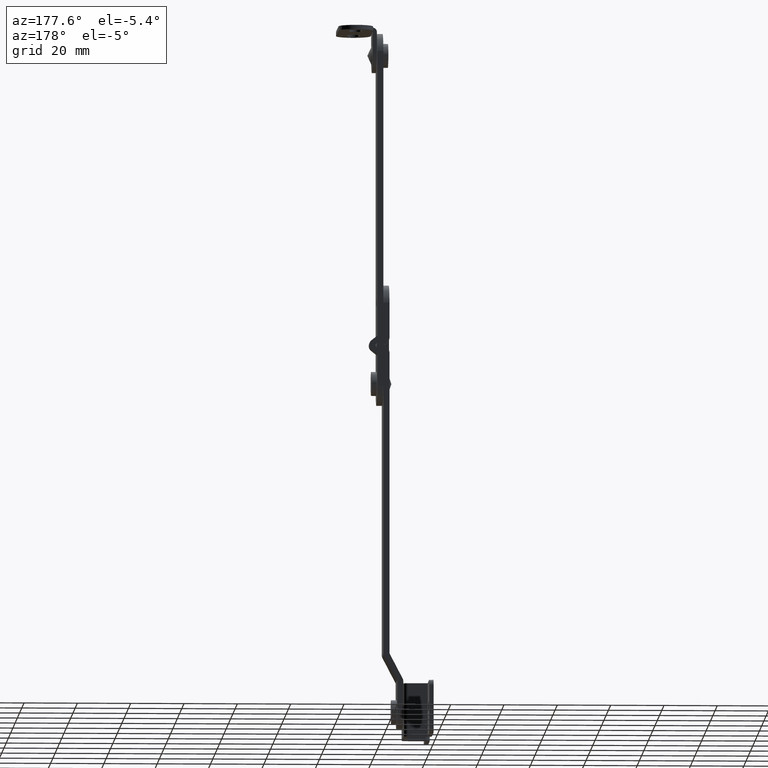
[diagram: clean part render]
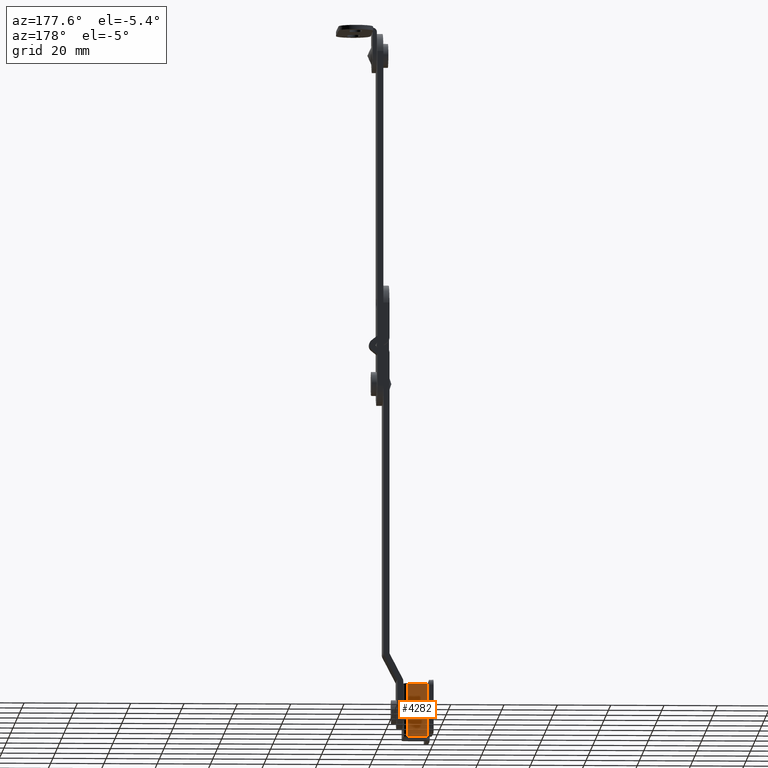
[diagram: same view with one face highlighted and labeled with its STEP entity id]
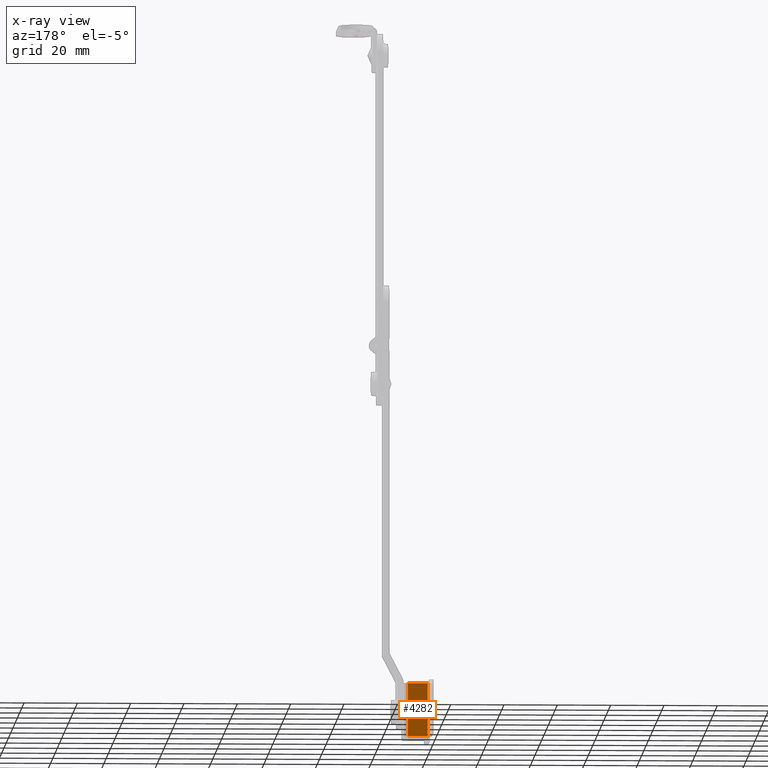
[diagram: x-ray of the same camera — body ghosted, the highlighted face saturated]
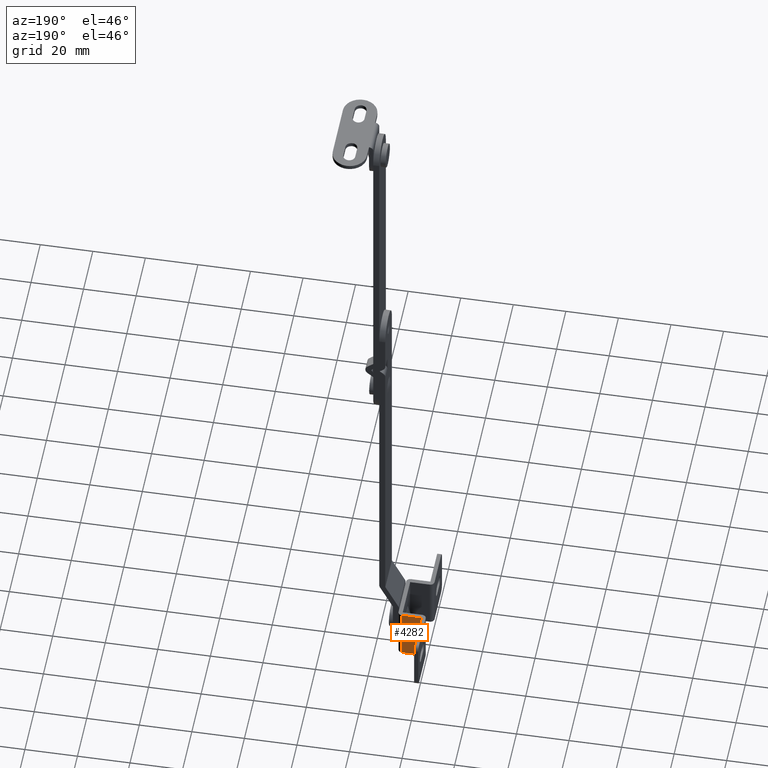
[diagram: same view with one face highlighted and labeled with its STEP entity id]
A machine part, auxiliary view. The second image highlights one B-rep face of the part: STEP entity #4282.
The next image is the same camera in x-ray: the body ghosted, the highlighted face saturated — about 0% of this face is hidden behind the body in this view.
A second angle (auxiliary view) of the same face is appended — the face is thin or edge-on in the first view.
In plain terms, the highlighted face is a freeform B-spline surface patch.
Its self-contained STEP definition (entity closure, byte-faithful):
#3789=CARTESIAN_POINT('',(8.900000000000000,9.599999000000000,-113.500000000004600));
#3790=VERTEX_POINT('',#3789);
#3801=CARTESIAN_POINT('',(1.500005999999905,9.599999000000000,-113.500000000004600));
#3802=VERTEX_POINT('',#3801);
#3803=CARTESIAN_POINT('',(1.500005999999905,9.599999000000000,-113.500000000004600));
#3804=CARTESIAN_POINT('',(8.900000000000000,9.599999000000000,-113.500000000004600));
#3805=QUASI_UNIFORM_CURVE('',1,(#3803,#3804),.UNSPECIFIED.,.F.,.U.);
#3806=EDGE_CURVE('',#3802,#3790,#3805,.T.);
#3938=CARTESIAN_POINT('',(1.500005999999905,9.599999000000000,-133.500000000004600));
#3939=VERTEX_POINT('',#3938);
#3945=CARTESIAN_POINT('',(8.900000000000000,9.599999000000000,-133.500000000004600));
#3946=VERTEX_POINT('',#3945);
#3947=CARTESIAN_POINT('',(1.500005999999905,9.599999000000000,-133.500000000004600));
#3948=CARTESIAN_POINT('',(8.900000000000000,9.599999000000000,-133.500000000004600));
#3949=QUASI_UNIFORM_CURVE('',1,(#3947,#3948),.UNSPECIFIED.,.F.,.U.);
#3950=EDGE_CURVE('',#3939,#3946,#3949,.T.);
#4259=CARTESIAN_POINT('',(8.900000000000000,9.599999000000000,-133.500000000004600));
#4260=CARTESIAN_POINT('',(8.900000000000000,9.599999000000000,-113.500000000004600));
#4261=QUASI_UNIFORM_CURVE('',1,(#4259,#4260),.UNSPECIFIED.,.F.,.U.);
#4262=EDGE_CURVE('',#3946,#3790,#4261,.T.);
#4267=CARTESIAN_POINT('',(9.269629338628137,9.599998999999851,-112.501000038768500));
#4268=CARTESIAN_POINT('',(9.269629338628137,9.599998999999851,-134.499000497682490));
#4269=CARTESIAN_POINT('',(1.130376132082954,9.599998999999851,-112.501000038768500));
#4270=CARTESIAN_POINT('',(1.130376132082954,9.599998999999851,-134.499000497682490));
#4271=B_SPLINE_SURFACE_WITH_KNOTS('',1,1,((#4267,#4269),(#4268,#4270)),.UNSPECIFIED.,.F.,.F.,.U.,(2,2),(2,2),(0.0,21.998000458914060),(0.0,8.139253206545183),.UNSPECIFIED.);
#4272=ORIENTED_EDGE('',*,*,#3806,.T.);
#4273=ORIENTED_EDGE('',*,*,#4262,.F.);
#4274=ORIENTED_EDGE('',*,*,#3950,.F.);
#4275=CARTESIAN_POINT('',(1.500005999999905,9.599999000000000,-133.500000000004600));
#4276=CARTESIAN_POINT('',(1.500005999999905,9.599999000000000,-113.500000000004600));
#4277=QUASI_UNIFORM_CURVE('',1,(#4275,#4276),.UNSPECIFIED.,.F.,.U.);
#4278=EDGE_CURVE('',#3939,#3802,#4277,.T.);
#4279=ORIENTED_EDGE('',*,*,#4278,.T.);
#4280=EDGE_LOOP('',(#4272,#4273,#4274,#4279));
#4281=FACE_OUTER_BOUND('',#4280,.T.);
#4282=ADVANCED_FACE('',(#4281),#4271,.T.);